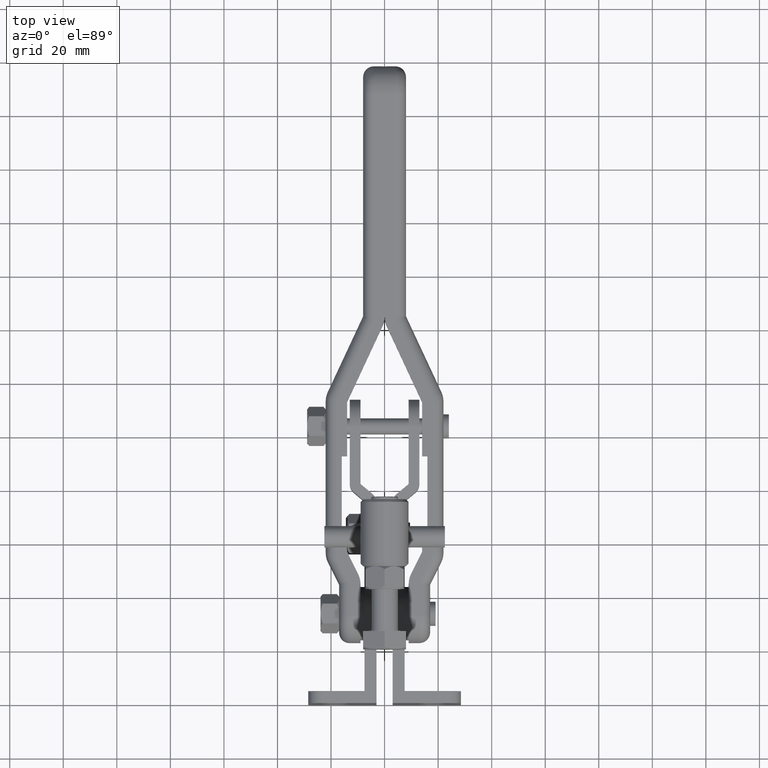
[diagram: clean part render]
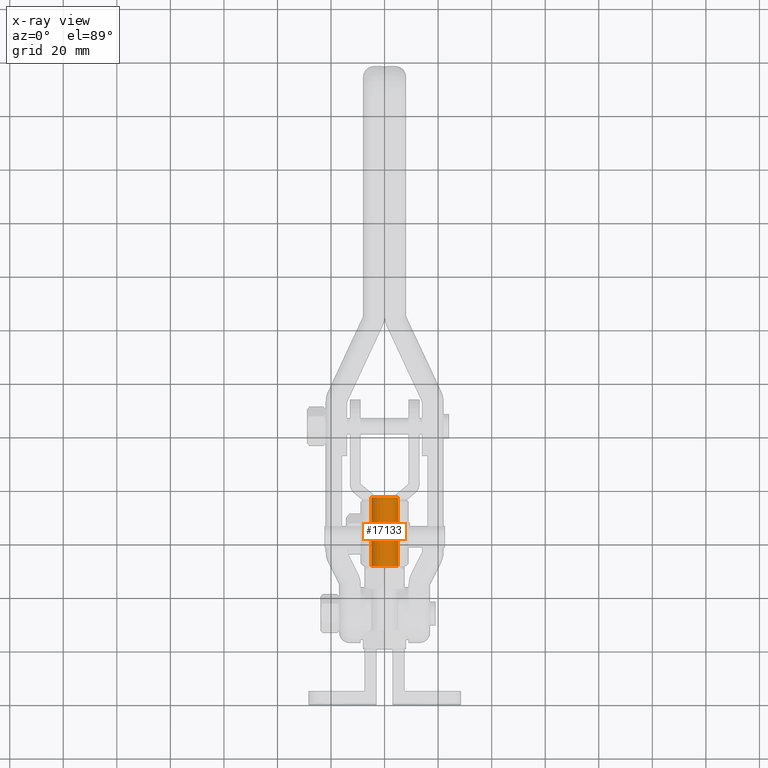
[diagram: x-ray — body ghosted, one internal face saturated and labeled with its STEP entity id]
A machine part, top view, then the same camera in x-ray: the body is ghosted and one INTERNAL B-rep face — a face not visible from any outside direction — is saturated and labeled: STEP entity #17133.
In plain terms, the highlighted cylindrical surface (edge-blend (fillet) strip) has radius 5 mm, axis along (-0, -1, 0).
Its self-contained STEP definition (entity closure, byte-faithful):
#193 = FACE_OUTER_BOUND ( 'NONE', #14395, .T. ) ;
#468 = DIRECTION ( 'NONE',  ( 2.850927041497296000E-020, -1.000000000000000000, 2.449278082483146600E-016 ) ) ;
#733 = EDGE_CURVE ( 'NONE', #3584, #20771, #18831, .T. ) ;
#1103 = VECTOR ( 'NONE', #18636, 1000.000000000000000 ) ;
#2171 = LINE ( 'NONE', #9541, #19550 ) ;
#3078 = DIRECTION ( 'NONE',  ( 0.0000000000000000000, -1.000000000000000000, 0.0000000000000000000 ) ) ;
#3371 = ORIENTED_EDGE ( 'NONE', *, *, #21574, .T. ) ;
#3584 = VERTEX_POINT ( 'NONE', #4570 ) ;
#3692 = VERTEX_POINT ( 'NONE', #9787 ) ;
#4570 = CARTESIAN_POINT ( 'NONE',  ( 4.999999999999995600, 49.99999999999976600, 60.99999999999960200 ) ) ;
#4902 = VERTEX_POINT ( 'NONE', #16860 ) ;
#5103 = EDGE_CURVE ( 'NONE', #3692, #3584, #2171, .T. ) ;
#5616 = ORIENTED_EDGE ( 'NONE', *, *, #733, .F. ) ;
#6164 = AXIS2_PLACEMENT_3D ( 'NONE', #9887, #8094, #21668 ) ;
#6811 = CARTESIAN_POINT ( 'NONE',  ( -4.999999999999985800, 75.69787059280727700, 60.99999999999960200 ) ) ;
#6903 = CARTESIAN_POINT ( 'NONE',  ( -3.953691952168428200E-015, 49.99999999999976600, 60.99999999999960200 ) ) ;
#6985 = CYLINDRICAL_SURFACE ( 'NONE', #6164, 5.000000000000000000 ) ;
#8094 = DIRECTION ( 'NONE',  ( -6.938893903907229400E-016, -1.000000000000000000, 0.0000000000000000000 ) ) ;
#8995 = CIRCLE ( 'NONE', #9995, 4.999999999999997300 ) ;
#9541 = CARTESIAN_POINT ( 'NONE',  ( 5.000000000000014200, 75.69787059280727700, 60.99999999999960200 ) ) ;
#9787 = CARTESIAN_POINT ( 'NONE',  ( 5.000000000000055100, 75.69787059280723400, 60.99999999999960200 ) ) ;
#9887 = CARTESIAN_POINT ( 'NONE',  ( 1.387778780781445700E-014, 75.69787059280727700, 60.99999999999960200 ) ) ;
#9995 = AXIS2_PLACEMENT_3D ( 'NONE', #13126, #3078, #14862 ) ;
#13126 = CARTESIAN_POINT ( 'NONE',  ( 1.387778780781445700E-014, 75.69787059280723400, 60.99999999999960200 ) ) ;
#14004 = LINE ( 'NONE', #6811, #1103 ) ;
#14395 = EDGE_LOOP ( 'NONE', ( #19616, #3371, #5616, #20686 ) ) ;
#14752 = DIRECTION ( 'NONE',  ( 0.0000000000000000000, 0.0000000000000000000, 1.000000000000000000 ) ) ;
#14862 = DIRECTION ( 'NONE',  ( 0.0000000000000000000, 8.326672684688678800E-015, -1.000000000000000000 ) ) ;
#16860 = CARTESIAN_POINT ( 'NONE',  ( -5.000000000000028400, 75.69787059280723400, 60.99999999999960200 ) ) ;
#17133 = ADVANCED_FACE ( 'NONE', ( #193 ), #6985, .T. ) ;
#18338 = EDGE_CURVE ( 'NONE', #3692, #4902, #8995, .T. ) ;
#18636 = DIRECTION ( 'NONE',  ( -6.938893903907229400E-016, -1.000000000000000000, 0.0000000000000000000 ) ) ;
#18831 = CIRCLE ( 'NONE', #18853, 4.999999999999997300 ) ;
#18853 = AXIS2_PLACEMENT_3D ( 'NONE', #6903, #468, #14752 ) ;
#19550 = VECTOR ( 'NONE', #21333, 1000.000000000000000 ) ;
#19616 = ORIENTED_EDGE ( 'NONE', *, *, #18338, .T. ) ;
#20686 = ORIENTED_EDGE ( 'NONE', *, *, #5103, .F. ) ;
#20714 = CARTESIAN_POINT ( 'NONE',  ( -5.000000000000004400, 49.99999999999976600, 60.99999999999960200 ) ) ;
#20771 = VERTEX_POINT ( 'NONE', #20714 ) ;
#21333 = DIRECTION ( 'NONE',  ( -6.938893903907229400E-016, -1.000000000000000000, 0.0000000000000000000 ) ) ;
#21574 = EDGE_CURVE ( 'NONE', #4902, #20771, #14004, .T. ) ;
#21668 = DIRECTION ( 'NONE',  ( 1.000000000000000000, 0.0000000000000000000, 0.0000000000000000000 ) ) ;